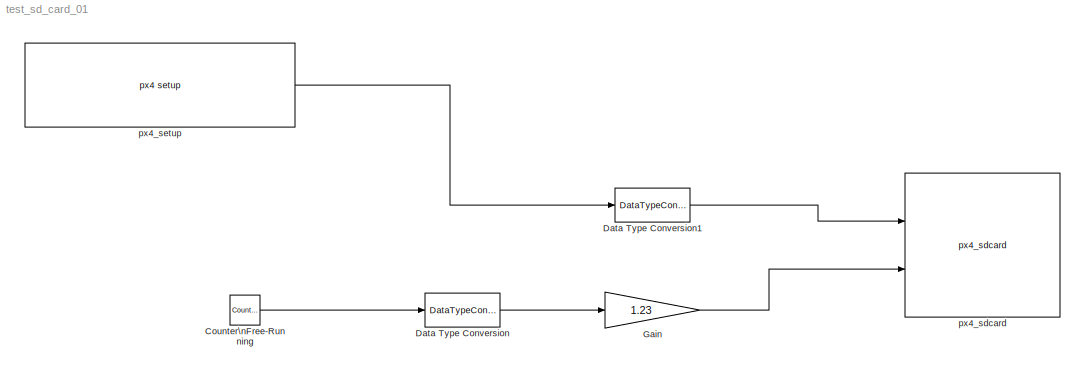
MODEL test_sd_card_01
KIND model
CONFIG InitFcn = px4_ap1_mdl_callback('check_model');
BLOCK [Reference] Counter\nFree-Running  REF=simulink/Sources/Counter\nFree-Running
  NumBits = 16
  Ports = [0, 1]
  SID = 1
  SourceBlock = simulink/Sources/Counter\nFree-Running
  SourceType = Counter Free-Running
  tsamp = -1
BLOCK [DataTypeConversion] Data Type Conversion
  OutDataTypeStr = double
  RndMeth = Floor
  SID = 2
  SaturateOnIntegerOverflow = off
BLOCK [DataTypeConversion] Data Type Conversion1
  LockScale = on
  OutDataTypeStr = double
  RndMeth = Floor
  SID = 3
  SaturateOnIntegerOverflow = off
BLOCK [Gain] Gain
  Gain = 1.23
  OutDataTypeStr = double
  ParamDataTypeStr = Inherit: Inherit via internal rule
  SID = 4
  SaturateOnIntegerOverflow = off
BLOCK [Reference] px4_sdcard  REF=px4_ap1_sdcard_logger_lib/px4_sdcard
  Description = Setup for PX4 native software
  Ports = [2]
  SID = 8
  SourceBlock = px4_ap1_sdcard_logger_lib/px4_sdcard
  SourceType = PX4_SDCARD
  sampleTime = 0.5
  sigCnt = 2
BLOCK [Reference] px4_setup  REF=px4_ap1_px4setup_lib/px4 setup
  Ports = [0, 1]
  SID = 5
  SampleTimeValue = 0.01
  SourceBlock = px4_ap1_px4setup_lib/px4 setup
  SourceType = PX4_Target_Setup
  cbBuild = on
  cbPort = COM3
  cbUpload = off
  cpuLoad = on
  debugmode = off
LINE Counter\nFree-Running:1 -> Data Type Conversion:1
LINE Data Type Conversion1:1 -> px4_sdcard:1
LINE Data Type Conversion:1 -> Gain:1
LINE Gain:1 -> px4_sdcard:2
LINE px4_setup:1 -> Data Type Conversion1:1
